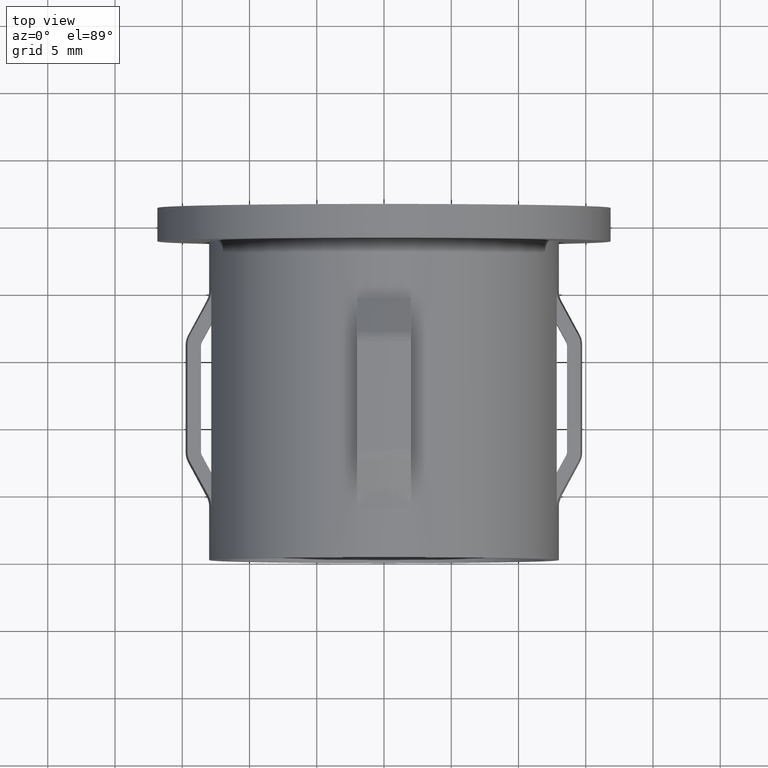
[diagram: clean part render]
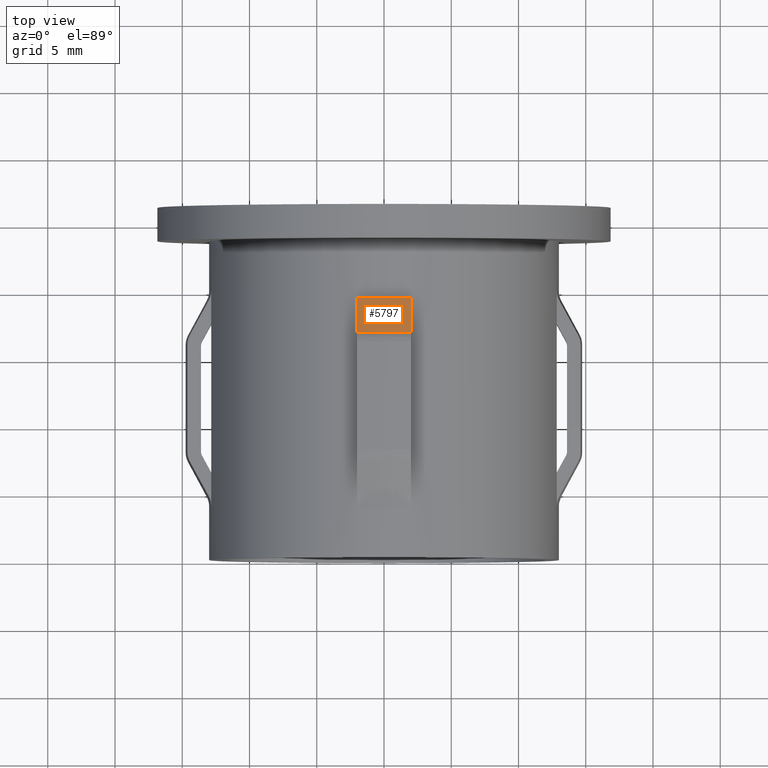
[diagram: same view with one face highlighted and labeled with its STEP entity id]
A machine part, top view. The second image highlights one B-rep face of the part: STEP entity #5797.
In plain terms, the highlighted conical surface has half-angle 28.36 deg.
Its self-contained STEP definition (entity closure, byte-faithful):
#370 = EDGE_LOOP ( 'NONE', ( #5889, #5338, #5351, #3473 ) ) ;
#658 = AXIS2_PLACEMENT_3D ( 'NONE', #12956, #2690, #6056 ) ;
#1930 = DIRECTION ( 'NONE',  ( 7.347880794884120200E-017, 1.000000000000000000, -0.0000000000000000000 ) ) ;
#2039 = CARTESIAN_POINT ( 'NONE',  ( -1.999999999999997100, 18.55312756011673200, 13.42844339235147500 ) ) ;
#2340 = VERTEX_POINT ( 'NONE', #8199 ) ;
#2610 = EDGE_CURVE ( 'NONE', #2340, #9259, #9357, .T. ) ;
#2690 = DIRECTION ( 'NONE',  ( -7.347880794884120200E-017, -1.000000000000000000, 0.0000000000000000000 ) ) ;
#3159 = CARTESIAN_POINT ( 'NONE',  ( 2.000000000000004000, 16.83631114039712500, 14.36458672975465600 ) ) ;
#3473 = ORIENTED_EDGE ( 'NONE', *, *, #14022, .F. ) ;
#4292 = CARTESIAN_POINT ( 'NONE',  ( 2.000000000000004000, 18.55312756011672800, 13.42844339235147500 ) ) ;
#4537 = CARTESIAN_POINT ( 'NONE',  ( -1.405288087306976400E-016, 19.28749199049963200, 0.0000000000000000000 ) ) ;
#5310 = CARTESIAN_POINT ( 'NONE',  ( 2.000000000000004000, 16.71250800950036800, 14.43205297699418900 ) ) ;
#5338 = ORIENTED_EDGE ( 'NONE', *, *, #2610, .T. ) ;
#5351 = ORIENTED_EDGE ( 'NONE', *, *, #11926, .T. ) ;
#5797 = ADVANCED_FACE ( 'NONE', ( #6485 ), #8774, .T. ) ;
#5889 = ORIENTED_EDGE ( 'NONE', *, *, #7154, .F. ) ;
#6056 = DIRECTION ( 'NONE',  ( 1.000000000000000000, 0.0000000000000000000, 0.0000000000000000000 ) ) ;
#6243 = VERTEX_POINT ( 'NONE', #13023 ) ;
#6485 = FACE_OUTER_BOUND ( 'NONE', #370, .T. ) ;
#6613 = B_SPLINE_CURVE_WITH_KNOTS ( 'NONE', 3,
 ( #9793, #8797, #12154, #10923, #11021, #2039, #14378 ),
 .UNSPECIFIED., .F., .F.,
 ( 4, 3, 4 ),
 ( 0.005560957864381510000, 0.005983935544222431100, 0.008494147510220448000 ),
 .UNSPECIFIED. ) ;
#6668 = CARTESIAN_POINT ( 'NONE',  ( 2.000000000000004000, 16.71250800950036800, 14.43205297699418900 ) ) ;
#6960 = CARTESIAN_POINT ( 'NONE',  ( 2.000000000000004000, 19.28749199049963200, 13.02739711600255700 ) ) ;
#7102 = AXIS2_PLACEMENT_3D ( 'NONE', #13410, #9222, #9965 ) ;
#7154 = EDGE_CURVE ( 'NONE', #2340, #6243, #6613, .T. ) ;
#8199 = CARTESIAN_POINT ( 'NONE',  ( -1.999999999999996700, 16.71250800950036800, 14.43205297699418900 ) ) ;
#8550 = B_SPLINE_CURVE_WITH_KNOTS ( 'NONE', 3,
 ( #6668, #3159, #13379, #14560, #11060, #4292, #6960 ),
 .UNSPECIFIED., .F., .F.,
 ( 4, 3, 4 ),
 ( 0.005560957864381512600, 0.005983935544222430300, 0.008494147510220451500 ),
 .UNSPECIFIED. ) ;
#8587 = CARTESIAN_POINT ( 'NONE',  ( 2.000000000000004000, 19.28749199049963200, 13.02739711600255700 ) ) ;
#8774 = CONICAL_SURFACE ( 'NONE', #658, 14.56997436959883200, 0.4949700996280870800 ) ;
#8797 = CARTESIAN_POINT ( 'NONE',  ( -1.999999999999996700, 16.83631114039712500, 14.36458672975465400 ) ) ;
#9222 = DIRECTION ( 'NONE',  ( 7.347880794884120200E-017, 1.000000000000000000, -0.0000000000000000000 ) ) ;
#9259 = VERTEX_POINT ( 'NONE', #5310 ) ;
#9357 = CIRCLE ( 'NONE', #7102, 14.56997436959883200 ) ;
#9793 = CARTESIAN_POINT ( 'NONE',  ( -1.999999999999996700, 16.71250800950036800, 14.43205297699418900 ) ) ;
#9965 = DIRECTION ( 'NONE',  ( -1.000000000000000000, 0.0000000000000000000, 0.0000000000000000000 ) ) ;
#10923 = CARTESIAN_POINT ( 'NONE',  ( -1.999999999999996700, 17.08390600611519600, 14.22963332444452300 ) ) ;
#11021 = CARTESIAN_POINT ( 'NONE',  ( -1.999999999999996700, 17.81858497931024800, 13.82916355188984200 ) ) ;
#11060 = CARTESIAN_POINT ( 'NONE',  ( 2.000000000000004000, 17.81858497931024500, 13.82916355188984200 ) ) ;
#11791 = VERTEX_POINT ( 'NONE', #8587 ) ;
#11926 = EDGE_CURVE ( 'NONE', #9259, #11791, #8550, .T. ) ;
#12154 = CARTESIAN_POINT ( 'NONE',  ( -1.999999999999996700, 16.96011052680198700, 14.29711361073644400 ) ) ;
#12956 = CARTESIAN_POINT ( 'NONE',  ( -3.297355621418851200E-016, 16.71250800950036800, 0.0000000000000000000 ) ) ;
#12967 = CIRCLE ( 'NONE', #13196, 13.18002563040117000 ) ;
#13023 = CARTESIAN_POINT ( 'NONE',  ( -1.999999999999997100, 19.28749199049963200, 13.02739711600255700 ) ) ;
#13196 = AXIS2_PLACEMENT_3D ( 'NONE', #4537, #1930, #14662 ) ;
#13379 = CARTESIAN_POINT ( 'NONE',  ( 2.000000000000004000, 16.96011052680198400, 14.29711361073644400 ) ) ;
#13410 = CARTESIAN_POINT ( 'NONE',  ( -3.297355621418851200E-016, 16.71250800950036800, 0.0000000000000000000 ) ) ;
#14022 = EDGE_CURVE ( 'NONE', #6243, #11791, #12967, .T. ) ;
#14378 = CARTESIAN_POINT ( 'NONE',  ( -1.999999999999997100, 19.28749199049963200, 13.02739711600255700 ) ) ;
#14560 = CARTESIAN_POINT ( 'NONE',  ( 2.000000000000004000, 17.08390600611519300, 14.22963332444452400 ) ) ;
#14662 = DIRECTION ( 'NONE',  ( -1.000000000000000000, 0.0000000000000000000, 0.0000000000000000000 ) ) ;